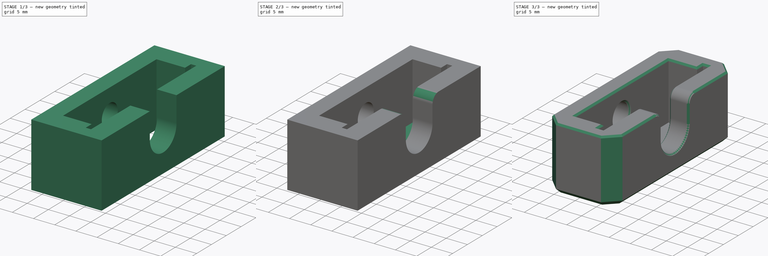
[diagram: build sequence overview — one tinted view per stage of 3, left to right]
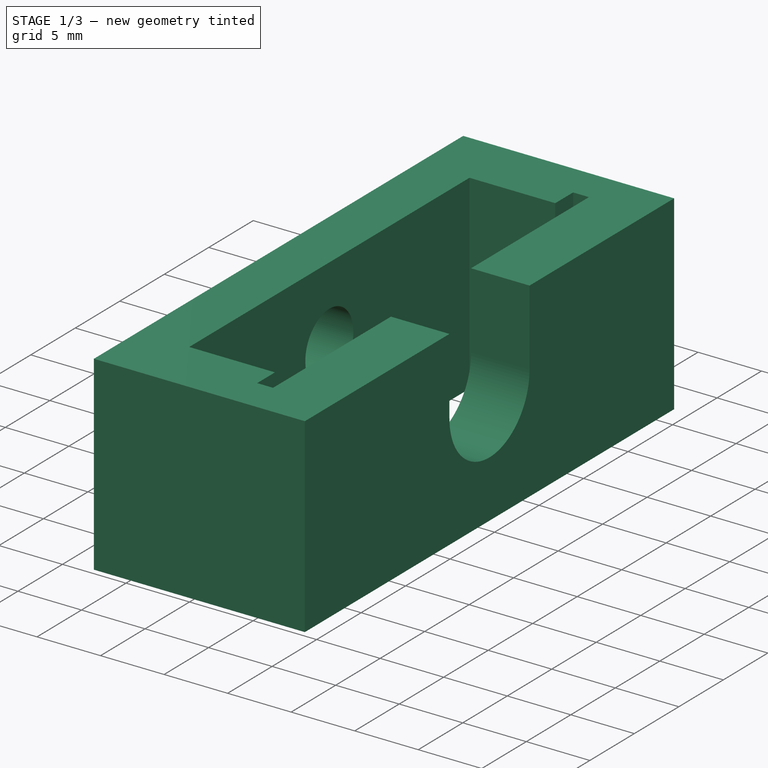
[diagram: stage 1 of 3 — iso view after this stage's code; geometry added in this stage tinted green]
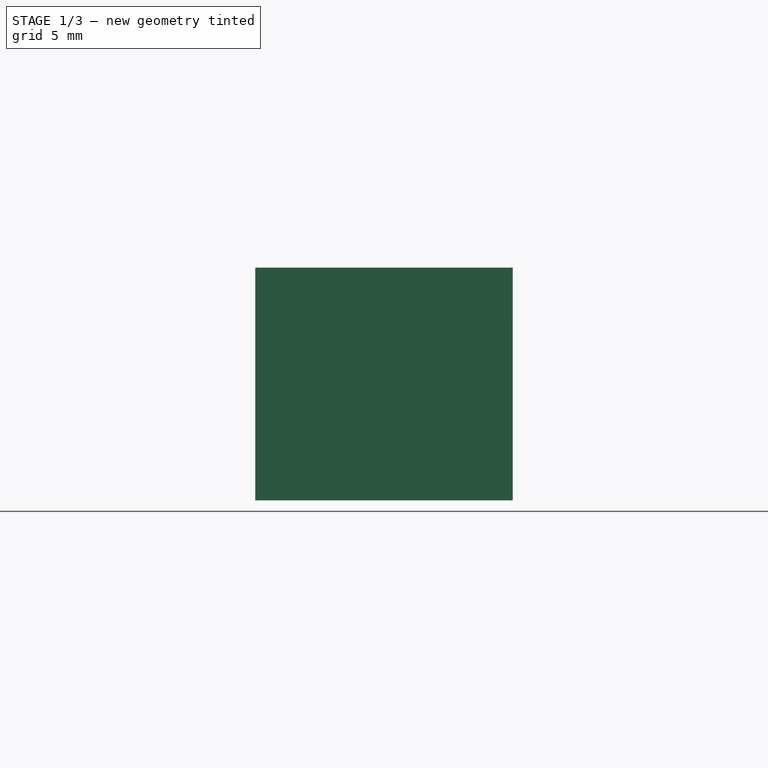
[diagram: stage 1 of 3 — front view after this stage's code; geometry added in this stage tinted green]
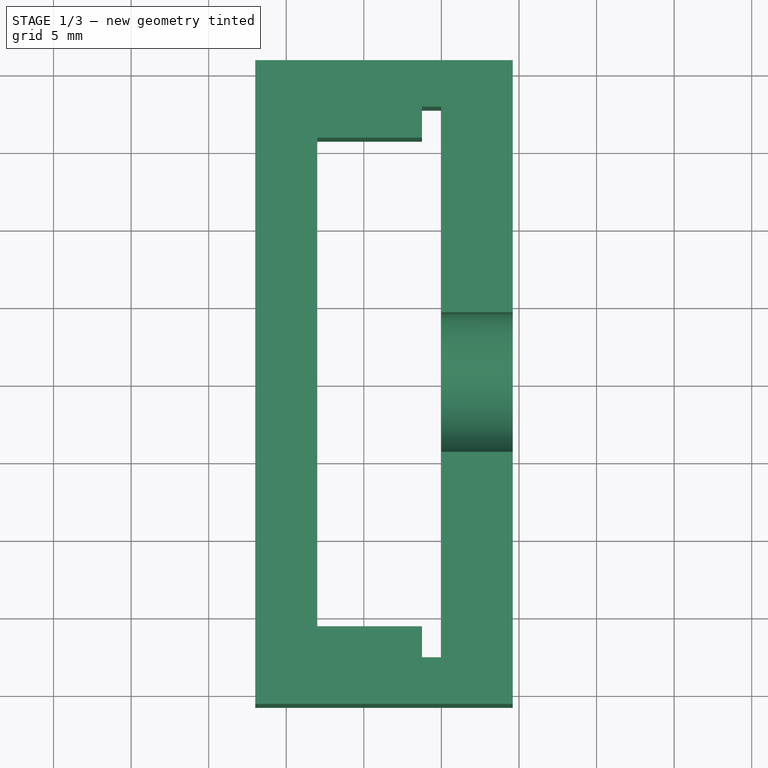
[diagram: stage 1 of 3 — top view after this stage's code; geometry added in this stage tinted green]
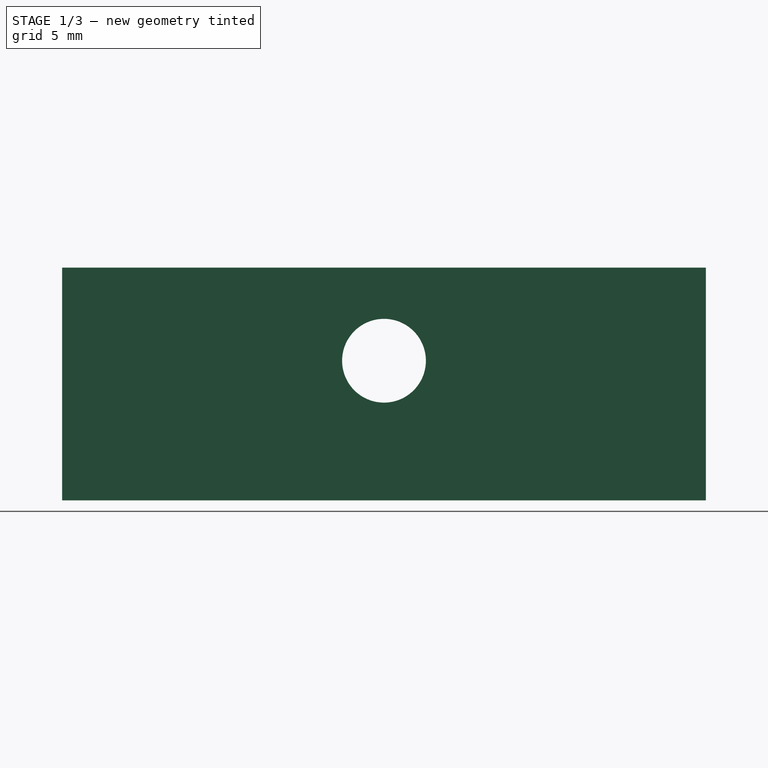
[diagram: stage 1 of 3 — right view after this stage's code; geometry added in this stage tinted green]
FCSTD DOCUMENT  (FreeCAD 0.19R24291 (Git))
Label: din-end-short
License: All rights reserved
LicenseURL: http://en.wikipedia.org/wiki/All_rights_reserved
objects: Sketcher::SketchObject×4, PartDesign::Chamfer×3, PartDesign::Pad×2, PartDesign::Pocket×2, PartDesign::Fillet×1, PartDesign::Body×1
note: 21 computed .brp shape members not serialized (recipe doc carries the construction recipe); baked Part::Feature solids carry a one-line shape summary decoded from their .brp

FEATURE [Sketcher::SketchObject] Sketch
  FullyConstrained = true
  MapMode = 5
  Support = -> [XY_Plane]
  sketch-geometry (12):
    g0: LineSegment StartX=0 StartY=17.75 StartZ=0 EndX=0 EndY=-17.75 EndZ=0
    g1: LineSegment StartX=0 StartY=-17.75 StartZ=0 EndX=-1.25 EndY=-17.75 EndZ=0
    g2: LineSegment StartX=-1.25 StartY=-17.75 StartZ=0 EndX=-1.25 EndY=-15.75 EndZ=0
    g3: LineSegment StartX=-1.25 StartY=-15.75 StartZ=0 EndX=-8 EndY=-15.75 EndZ=0
    g4: LineSegment StartX=-8 StartY=-15.75 StartZ=0 EndX=-8 EndY=15.75 EndZ=0
    g5: LineSegment StartX=-8 StartY=15.75 StartZ=0 EndX=-1.25 EndY=15.75 EndZ=0
    g6: LineSegment StartX=-1.25 StartY=15.75 StartZ=0 EndX=-1.25 EndY=17.75 EndZ=0
    g7: LineSegment StartX=-1.25 StartY=17.75 StartZ=0 EndX=0 EndY=17.75 EndZ=0
    g8: LineSegment StartX=-12 StartY=20.75 StartZ=0 EndX=4.6 EndY=20.75 EndZ=0
    g9: LineSegment StartX=4.6 StartY=20.75 StartZ=0 EndX=4.6 EndY=-20.75 EndZ=0
    g10: LineSegment StartX=4.6 StartY=-20.75 StartZ=0 EndX=-12 EndY=-20.75 EndZ=0
    g11: LineSegment StartX=-12 StartY=-20.75 StartZ=0 EndX=-12 EndY=20.75 EndZ=0
  constraints (36):
    c: PointOnObject(g0,g-2)
    c: PointOnObject(g0,g-2)
    c: Coincident(g0,g1)
    c: Horizontal(g1)
    c: Coincident(g1,g2)
    c: Vertical(g2)
    c: Coincident(g2,g3)
    c: Horizontal(g3)
    c: Coincident(g3,g4)
    c: Vertical(g4)
    c: Coincident(g4,g5)
    c: Horizontal(g5)
    c: Coincident(g5,g6)
    c: Coincident(g6,g7)
    c: Coincident(g7,g0)
    c: Horizontal(g7)
    c: Vertical(g6)
    c: Vertical(g5,g2)
    c: DistanceY(g0,g0) = 35.5
    c: DistanceY(g-1,g0) = 17.75
    c: DistanceY(g4,g4) = 31.5
    c: DistanceY(g-1,g4) = 15.75
    c: DistanceX(g7,g7) = 1.25
    c: DistanceX(g4,g0) = 8
    c: Coincident(g8,g9)
    c: Coincident(g9,g10)
    c: Coincident(g10,g11)
    c: Coincident(g11,g8)
    c: Horizontal(g8)
    c: Horizontal(g10)
    c: Vertical(g9)
    c: Vertical(g11)
    c: DistanceY(g0,g8) = 3
    c: DistanceY(g9,g0) = 3
    c: DistanceX(g0,g9) = 4.6
    c: DistanceX(g10,g3) = 4
FEATURE [PartDesign::Pad] Pad
  Direction = (1,1,1)
  Length = 15
  Length2 = 100
  Profile = -> Sketch
  Type = 0
FEATURE [Sketcher::SketchObject] Sketch001
  FullyConstrained = true
  MapMode = 5
  Placement = pos=(-12,0,0) rot=(0.57735,-0.57735,-0.57735;2.0944rad)
  Support = -> [Pad]
  sketch-geometry (1):
    g0: Circle CenterX=0 CenterY=9 CenterZ=0 NormalX=0 NormalY=0 NormalZ=1 AngleXU=0 Radius=2.7
  constraints (3):
    c: PointOnObject(g0,g-2)
    c: Radius(g0) = 2.7
    c: DistanceY(g-1,g0) = 9
FEATURE [PartDesign::Pocket] Pocket
  BaseFeature = -> Pad
  Length = 0
  Length2 = 100
  Profile = -> Sketch001
  Type = 3
  UpToFace = -> Pad [Face8]
FEATURE [Sketcher::SketchObject] Sketch002
  FullyConstrained = true
  MapMode = 5
  Placement = pos=(4.6,0,0) rot=(0.57735,0.57735,0.57735;2.0944rad)
  Support = -> [Pocket]
  sketch-geometry (4):
    g0: ArcOfCircle CenterX=0 CenterY=9 CenterZ=0 NormalX=0 NormalY=0 NormalZ=1 AngleXU=0 Radius=4.5 StartAngle=3.14159 EndAngle=6.28319
    g1: LineSegment StartX=-4.5 StartY=9 StartZ=0 EndX=-4.5 EndY=15 EndZ=0
    g2: LineSegment StartX=-4.5 StartY=15 StartZ=0 EndX=4.5 EndY=15 EndZ=0
    g3: LineSegment StartX=4.5 StartY=15 StartZ=0 EndX=4.5 EndY=9 EndZ=0
  constraints (12):
    c: PointOnObject(g0,g-2)
    c: Horizontal(g0,g0)
    c: Horizontal(g0,g0)
    c: DistanceY(g-1,g0) = 9
    c: Radius(g0) = 4.5
    c: Tangent(g0,g1) = 1.5708
    c: Coincident(g1,g2)
    c: Horizontal(g2)
    c: Coincident(g2,g3)
    c: Coincident(g3,g0)
    c: Vertical(g3)
    c: DistanceY(g1,g1) = 6
FEATURE [PartDesign::Pocket] Pocket001
  BaseFeature = -> Pocket
  Length = 0
  Length2 = 100
  Profile = -> Sketch002
  Type = 3
  UpToFace = -> Pocket [Face15]
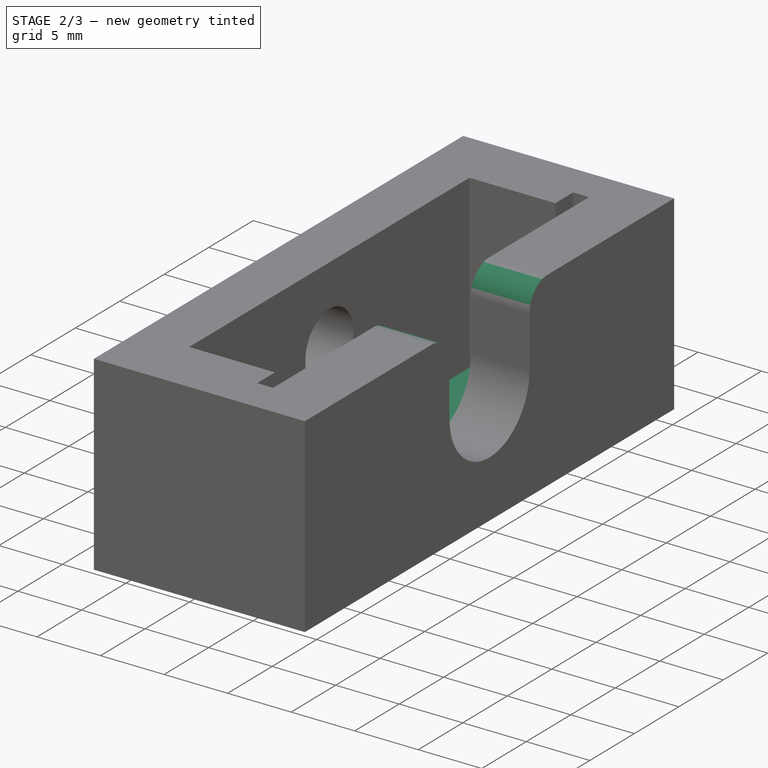
[diagram: stage 2 of 3 — iso view after this stage's code; geometry added in this stage tinted green]
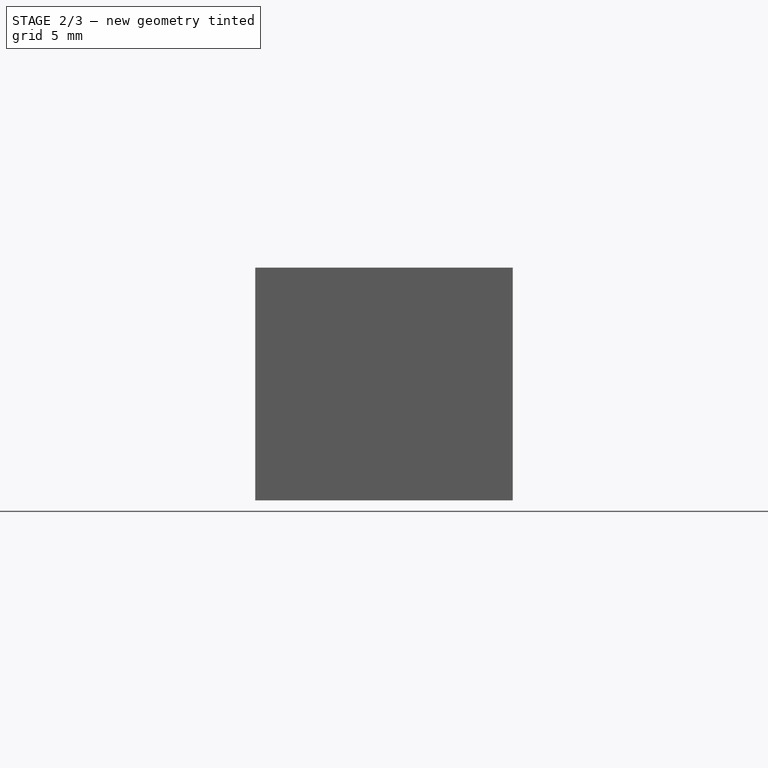
[diagram: stage 2 of 3 — front view after this stage's code; geometry added in this stage tinted green]
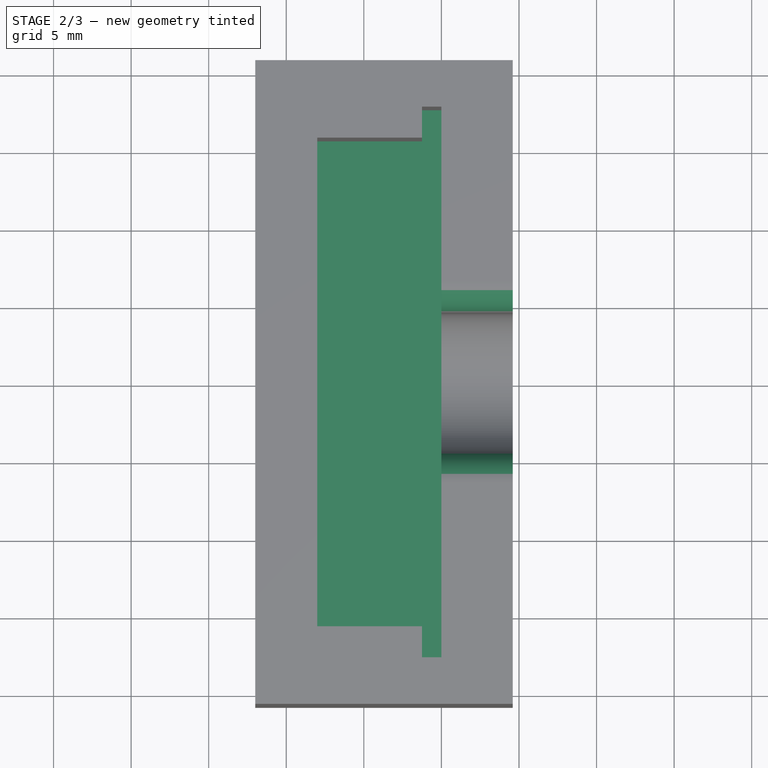
[diagram: stage 2 of 3 — top view after this stage's code; geometry added in this stage tinted green]
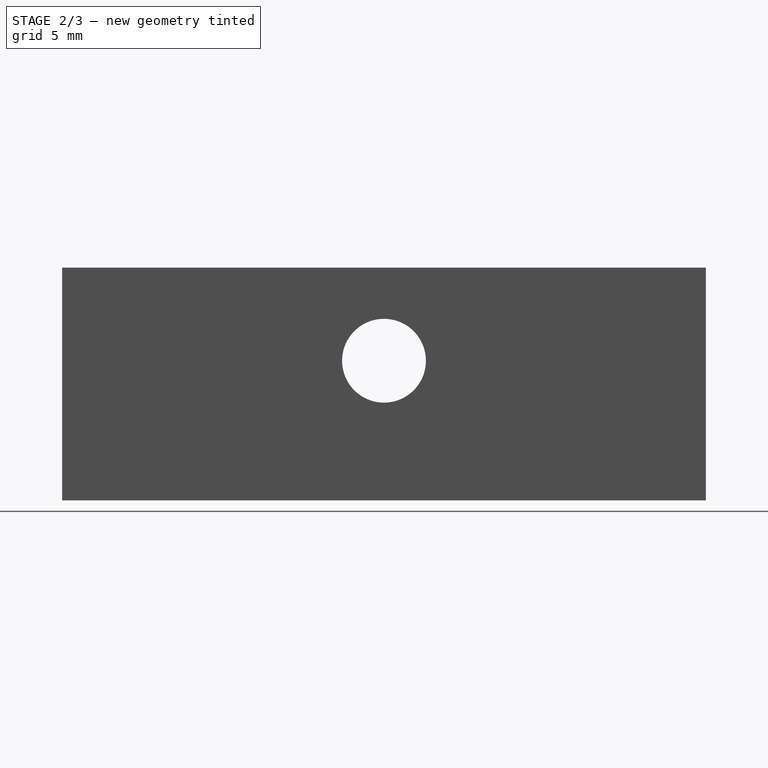
[diagram: stage 2 of 3 — right view after this stage's code; geometry added in this stage tinted green]
FEATURE [PartDesign::Fillet] Fillet
  Base = -> Pocket001 [Edge26,Edge36]
  BaseFeature = -> Pocket001
  Radius = 2
  SupportTransform = false
FEATURE [Sketcher::SketchObject] Sketch003
  ExternalGeometry = -> [Fillet]
  FullyConstrained = true
  MapMode = 5
  Placement = pos=(0,0,0) rot=(1,0,0;3.14159rad)
  Support = -> [Fillet]
  sketch-geometry (4):
    g0: LineSegment StartX=-12 StartY=20.75 StartZ=0 EndX=4.6 EndY=20.75 EndZ=0
    g1: LineSegment StartX=4.6 StartY=20.75 StartZ=0 EndX=4.6 EndY=-20.75 EndZ=0
    g2: LineSegment StartX=4.6 StartY=-20.75 StartZ=0 EndX=-12 EndY=-20.75 EndZ=0
    g3: LineSegment StartX=-12 StartY=-20.75 StartZ=0 EndX=-12 EndY=20.75 EndZ=0
  constraints (10):
    c: Coincident(g0,g1)
    c: Coincident(g1,g2)
    c: Coincident(g2,g3)
    c: Coincident(g3,g0)
    c: Horizontal(g0)
    c: Horizontal(g2)
    c: Vertical(g1)
    c: Vertical(g3)
    c: Coincident(g0,g-3)
    c: Coincident(g1,g-4)
FEATURE [PartDesign::Pad] Pad001
  BaseFeature = -> Fillet
  Direction = (1,1,1)
  Length = 1.5
  Length2 = 100
  Profile = -> Sketch003
  Refine = true
  Reversed = true
  Type = 0
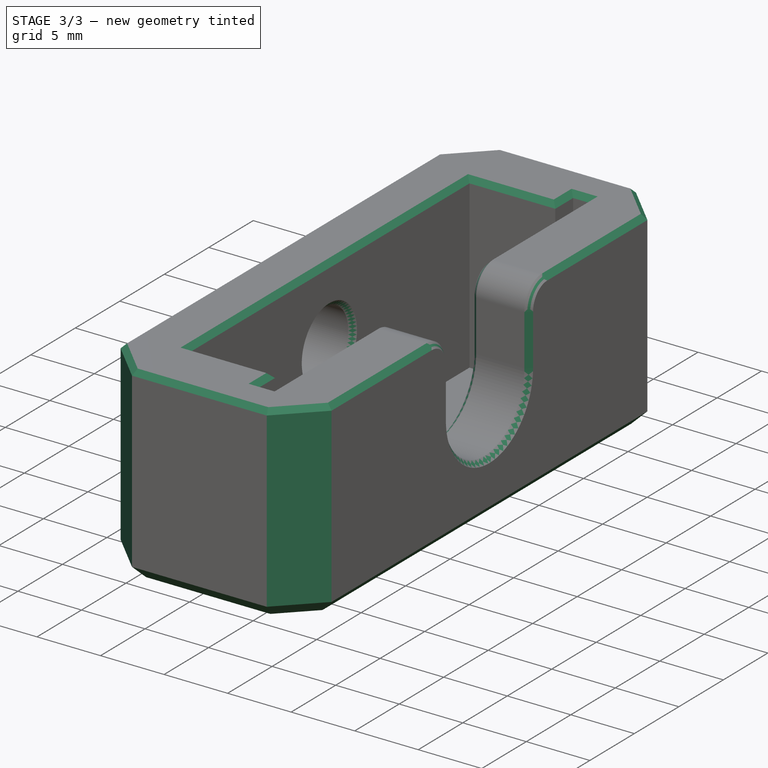
[diagram: stage 3 of 3 — iso view after this stage's code; geometry added in this stage tinted green]
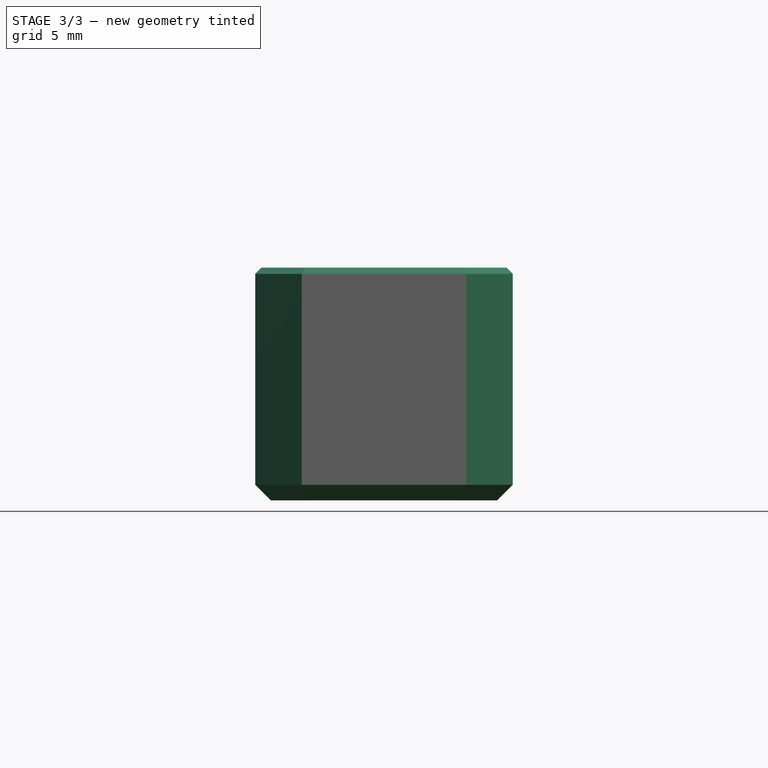
[diagram: stage 3 of 3 — front view after this stage's code; geometry added in this stage tinted green]
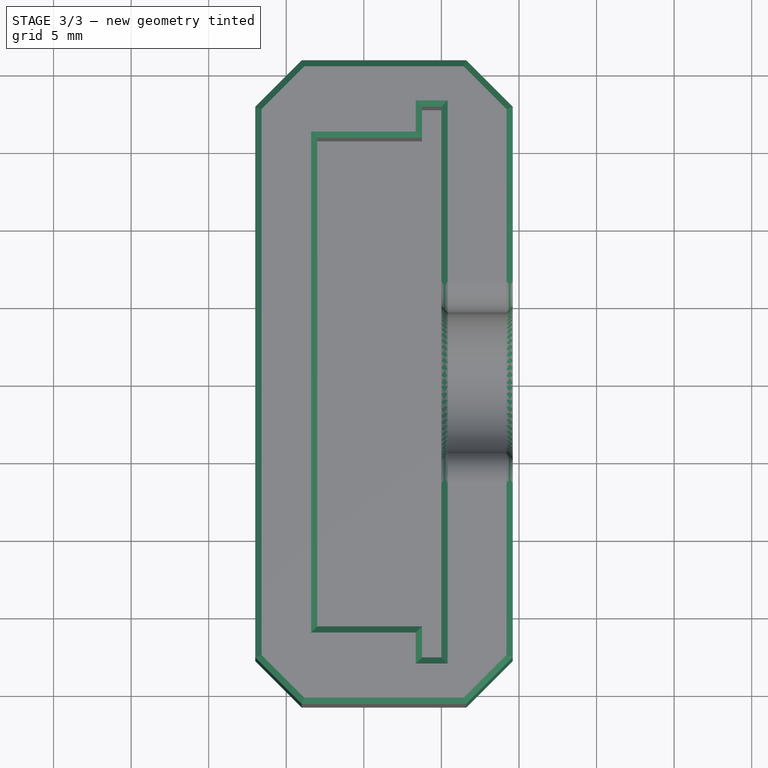
[diagram: stage 3 of 3 — top view after this stage's code; geometry added in this stage tinted green]
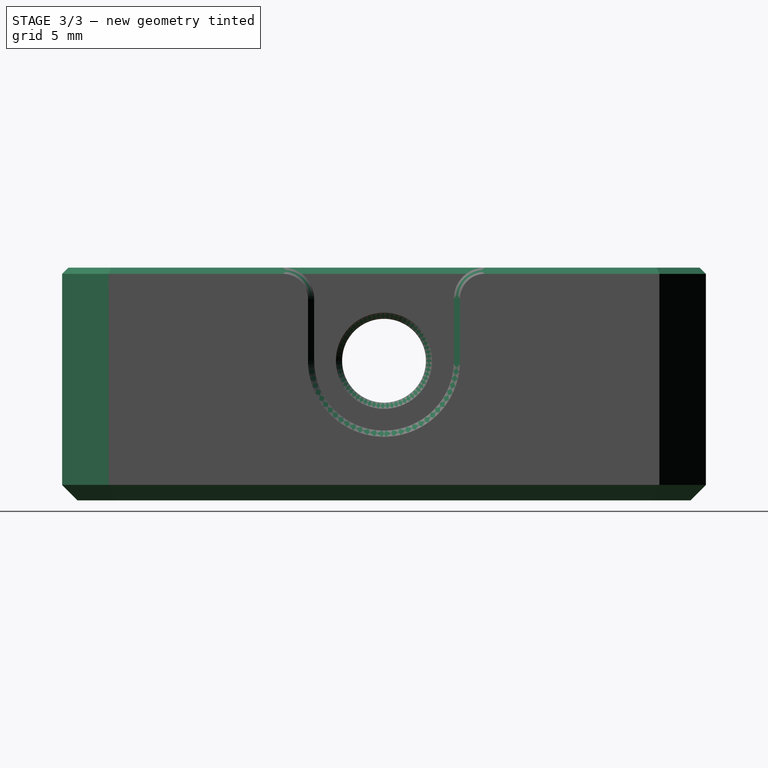
[diagram: stage 3 of 3 — right view after this stage's code; geometry added in this stage tinted green]
FEATURE [PartDesign::Chamfer] Chamfer
  Angle = 45
  Base = -> Pad001 [Edge54,Edge55,Edge50,Edge52]
  BaseFeature = -> Pad001
  ChamferType = 0
  FlipDirection = false
  Size = 3
  Size2 = 1
  SupportTransform = false
FEATURE [PartDesign::Chamfer] Chamfer001
  Angle = 45
  Base = -> Chamfer [Face20]
  BaseFeature = -> Chamfer
  ChamferType = 0
  FlipDirection = false
  Size = 1
  Size2 = 1
  SupportTransform = false
FEATURE [PartDesign::Chamfer] Chamfer002
  Angle = 45
  Base = -> Chamfer001 [Edge29,Edge27,Edge30,Edge32,Edge33,Edge41,Edge44,Edge43,Edge39,Edge37,Edge19,Edge21,Edge23,Edge25,Edge22,Edge24,Edge26,Edge28,Edge6,Edge20,Edge18,Edge12,Edge3,Edge65,Edge8,Edge10,Edge9,Edge7,Edge5,Edge75]
  BaseFeature = -> Chamfer001
  ChamferType = 0
  FlipDirection = false
  Size = 0.4
  Size2 = 1
  SupportTransform = false
FEATURE [PartDesign::Body] Body
  Group = -> [Sketch,Pad,Sketch001,Pocket,Sketch002,Pocket001,Fillet,Sketch003,Pad001,Chamfer,Chamfer001,Chamfer002]
  Origin = -> Origin
  Tip = -> Chamfer002
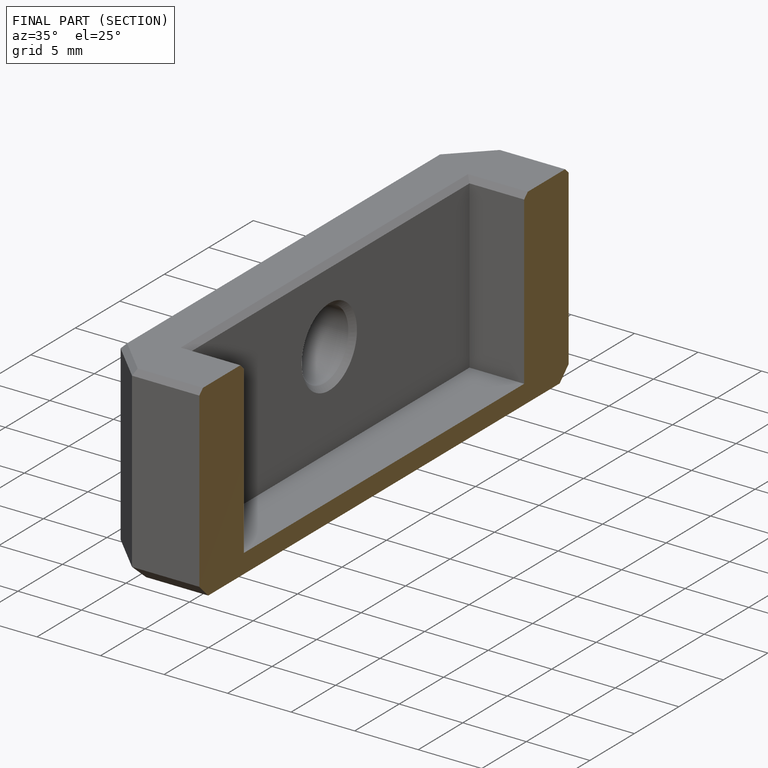
[diagram: finished part — half-section view (interior)]
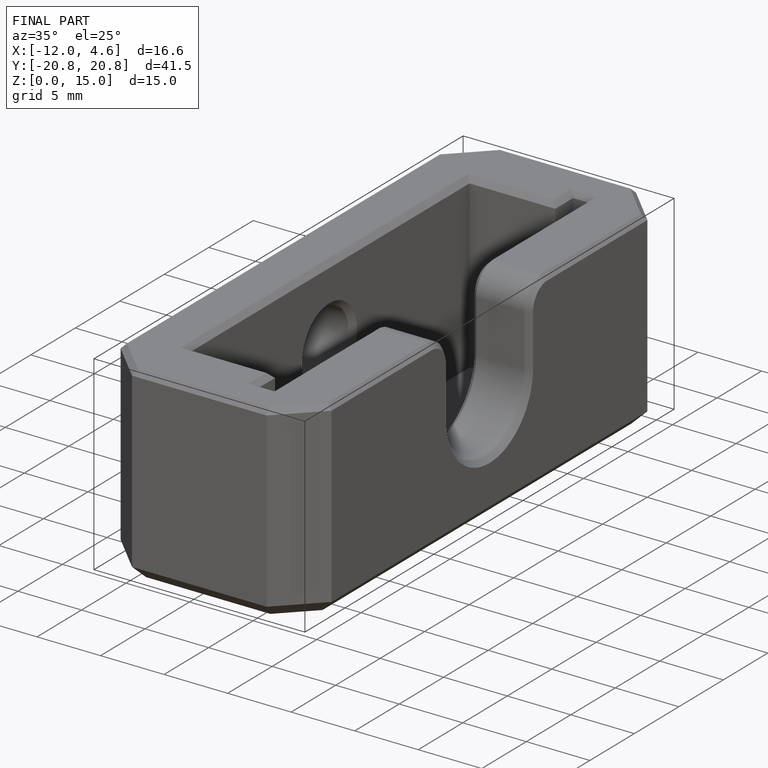
[diagram: finished part — iso view with bounding-box wireframe]
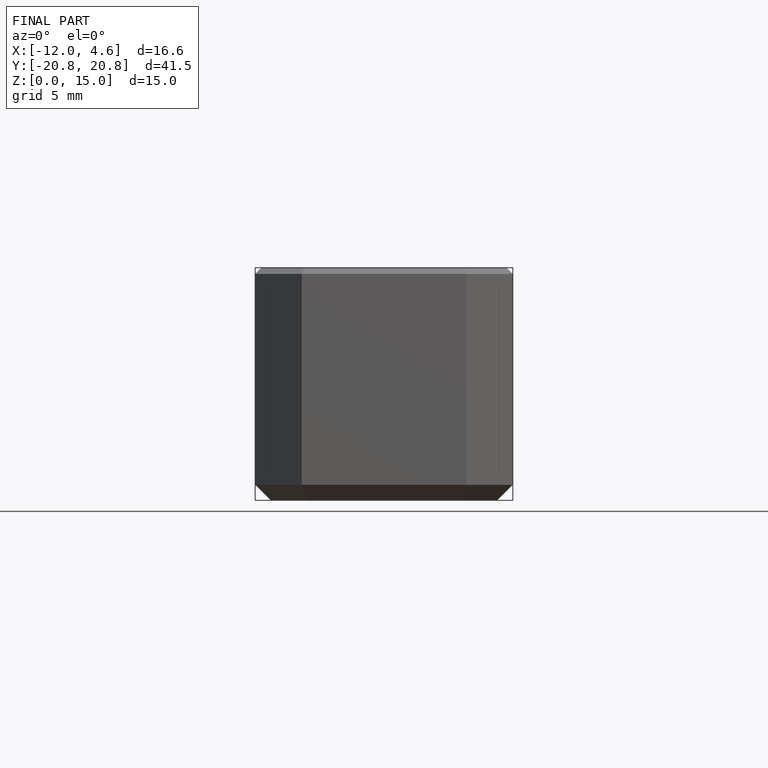
[diagram: finished part — front view with bounding-box wireframe]
